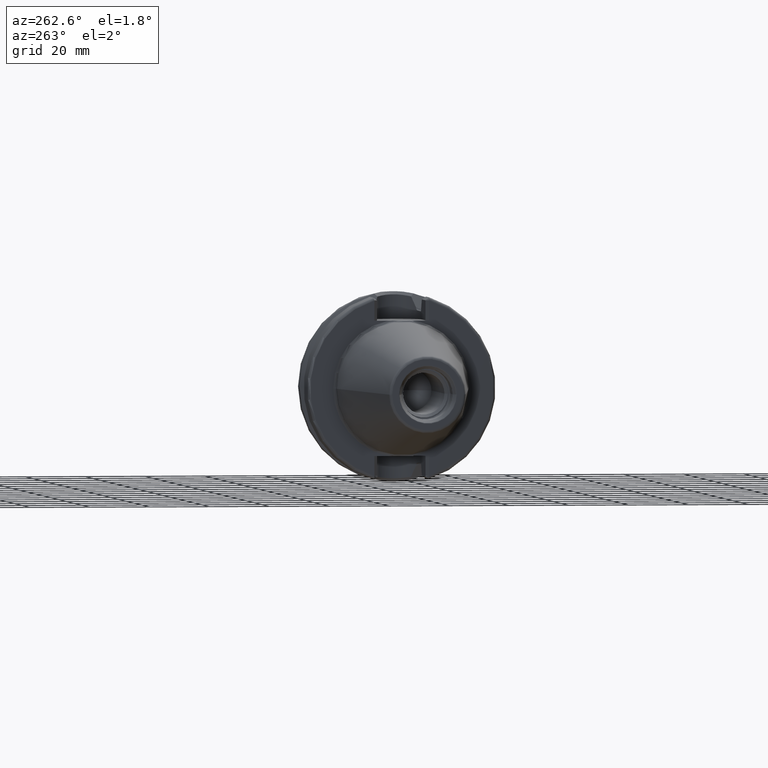
[diagram: clean part render]
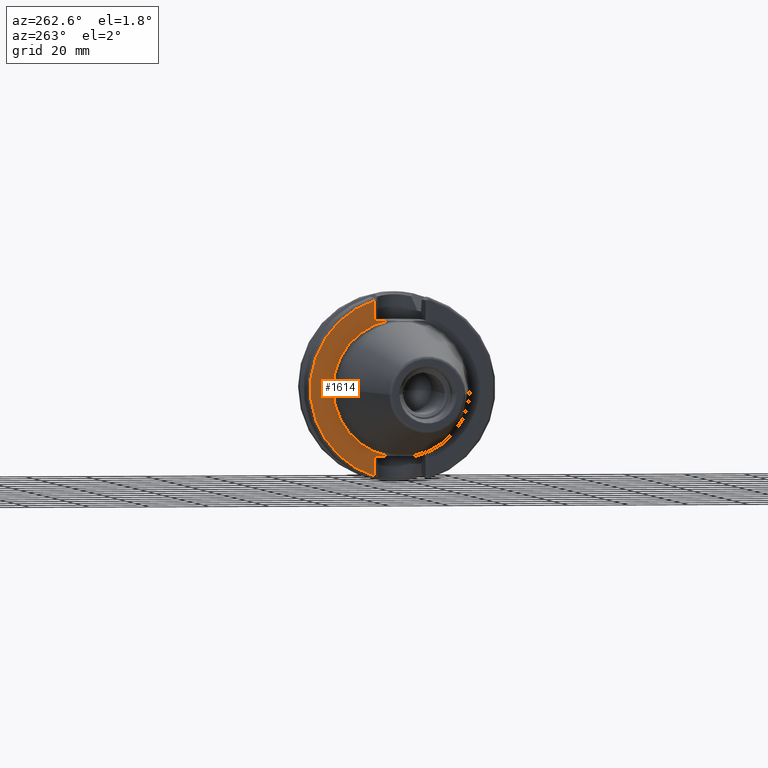
[diagram: same view with one face highlighted and labeled with its STEP entity id]
A machine part, auxiliary view. The second image highlights one B-rep face of the part: STEP entity #1614.
In plain terms, the highlighted planar face has unit normal (1, 0, 0).
Its self-contained STEP definition (entity closure, byte-faithful):
#96=CARTESIAN_POINT('',(2.E0,0.E0,0.E0));
#97=DIRECTION('',(-1.E0,0.E0,0.E0));
#98=DIRECTION('',(0.E0,1.E0,0.E0));
#99=AXIS2_PLACEMENT_3D('',#96,#97,#98);
#127=DIRECTION('',(2.137863157138E-6,2.138092596513E-6,9.999999999954E-1));
#128=VECTOR('',#127,6.649288203884E0);
#129=CARTESIAN_POINT('',(1.999985784732E0,9.094985783206E0,-2.909928820385E1));
#130=LINE('',#129,#128);
#131=DIRECTION('',(-4.462834027332E-6,-4.463945839096E-6,9.999999999801E-1));
#132=VECTOR('',#131,6.649296399125E0);
#133=CARTESIAN_POINT('',(2.E0,9.095E0,2.245E1));
#134=LINE('',#133,#132);
#592=CARTESIAN_POINT('',(2.E0,0.E0,0.E0));
#593=DIRECTION('',(-1.E0,0.E0,0.E0));
#594=DIRECTION('',(0.E0,2.983190614061E-1,9.544662055839E-1));
#595=AXIS2_PLACEMENT_3D('',#592,#593,#594);
#688=DIRECTION('',(0.E0,1.E0,0.E0));
#689=VECTOR('',#688,4.706022328605E0);
#690=CARTESIAN_POINT('',(2.E0,4.388977671395E0,2.245E1));
#691=LINE('',#690,#689);
#709=CARTESIAN_POINT('',(2.E0,0.E0,0.E0));
#710=DIRECTION('',(1.E0,0.E0,0.E0));
#711=DIRECTION('',(0.E0,1.E0,0.E0));
#712=AXIS2_PLACEMENT_3D('',#709,#710,#711);
#746=DIRECTION('',(0.E0,-1.E0,0.E0));
#747=VECTOR('',#746,4.706022328605E0);
#748=CARTESIAN_POINT('',(2.E0,9.095E0,-2.245E1));
#749=LINE('',#748,#747);
#1262=CARTESIAN_POINT('',(2.E0,2.2875E1,0.E0));
#1264=VERTEX_POINT('',#1262);
#1332=CARTESIAN_POINT('',(2.E0,4.388977671395E0,2.245E1));
#1333=VERTEX_POINT('',#1332);
#1340=CARTESIAN_POINT('',(2.E0,4.388977671395E0,-2.245E1));
#1341=VERTEX_POINT('',#1340);
#1378=CARTESIAN_POINT('',(2.E0,9.095027762300E0,2.909928051090E1));
#1380=VERTEX_POINT('',#1378);
#1382=CARTESIAN_POINT('',(2.E0,9.095E0,2.245E1));
#1383=VERTEX_POINT('',#1382);
#1392=CARTESIAN_POINT('',(1.999985784732E0,9.094985783206E0,-2.909928820385E1));
#1393=CARTESIAN_POINT('',(2.E0,9.095E0,-2.245E1));
#1394=VERTEX_POINT('',#1392);
#1395=VERTEX_POINT('',#1393);
#1594=CARTESIAN_POINT('',(2.E0,0.E0,0.E0));
#1595=DIRECTION('',(1.E0,0.E0,0.E0));
#1596=DIRECTION('',(0.E0,-1.E0,0.E0));
#1597=AXIS2_PLACEMENT_3D('',#1594,#1595,#1596);
#1598=PLANE('',#1597);
#1600=ORIENTED_EDGE('',*,*,#1599,.F.);
#1602=ORIENTED_EDGE('',*,*,#1601,.F.);
#1604=ORIENTED_EDGE('',*,*,#1603,.F.);
#1606=ORIENTED_EDGE('',*,*,#1605,.F.);
#1608=ORIENTED_EDGE('',*,*,#1607,.F.);
#1609=ORIENTED_EDGE('',*,*,#1580,.T.);
#1611=ORIENTED_EDGE('',*,*,#1610,.F.);
#1612=EDGE_LOOP('',(#1600,#1602,#1604,#1606,#1608,#1609,#1611));
#1613=FACE_OUTER_BOUND('',#1612,.F.);
#1614=ADVANCED_FACE('',(#1613),#1598,.F.);
#100=CIRCLE('',#99,2.2875E1);
#596=CIRCLE('',#595,3.04875E1);
#713=CIRCLE('',#712,2.2875E1);
#1580=EDGE_CURVE('',#1264,#1341,#100,.T.);
#1599=EDGE_CURVE('',#1394,#1395,#130,.T.);
#1601=EDGE_CURVE('',#1380,#1394,#596,.T.);
#1603=EDGE_CURVE('',#1383,#1380,#134,.T.);
#1605=EDGE_CURVE('',#1333,#1383,#691,.T.);
#1607=EDGE_CURVE('',#1264,#1333,#713,.T.);
#1610=EDGE_CURVE('',#1395,#1341,#749,.T.);